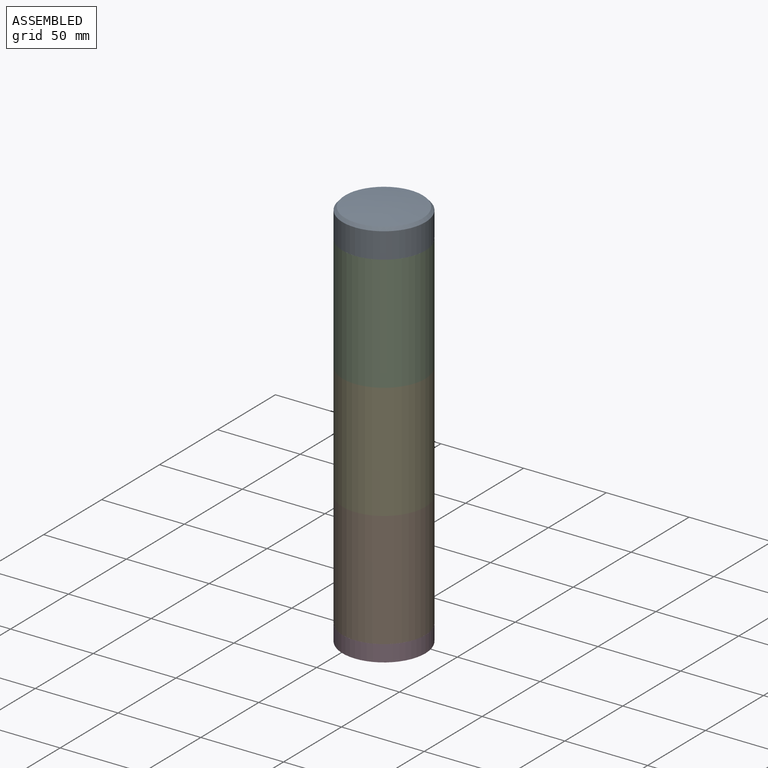
[diagram: assembled view]
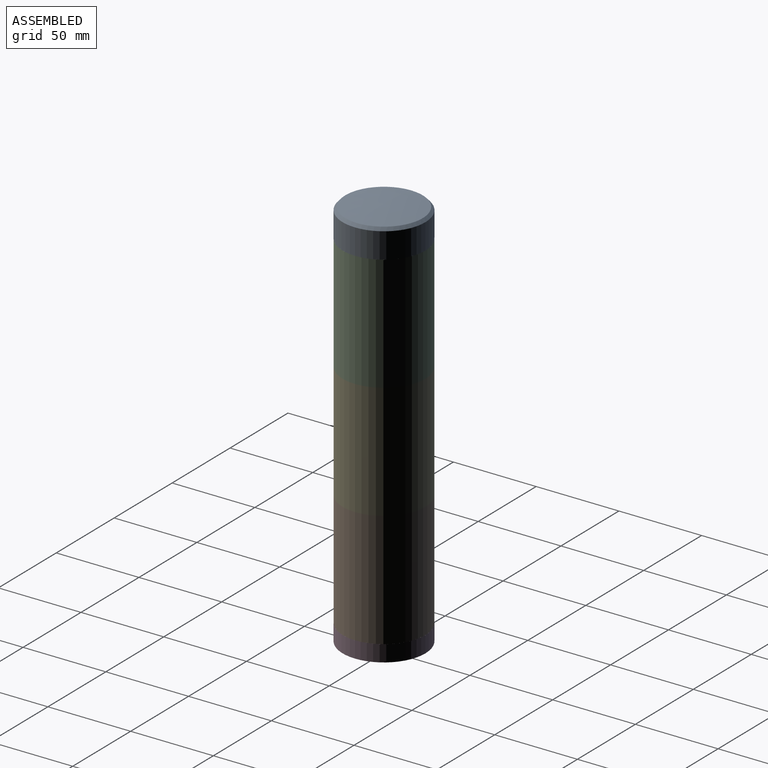
[diagram: assembled view, second angle]
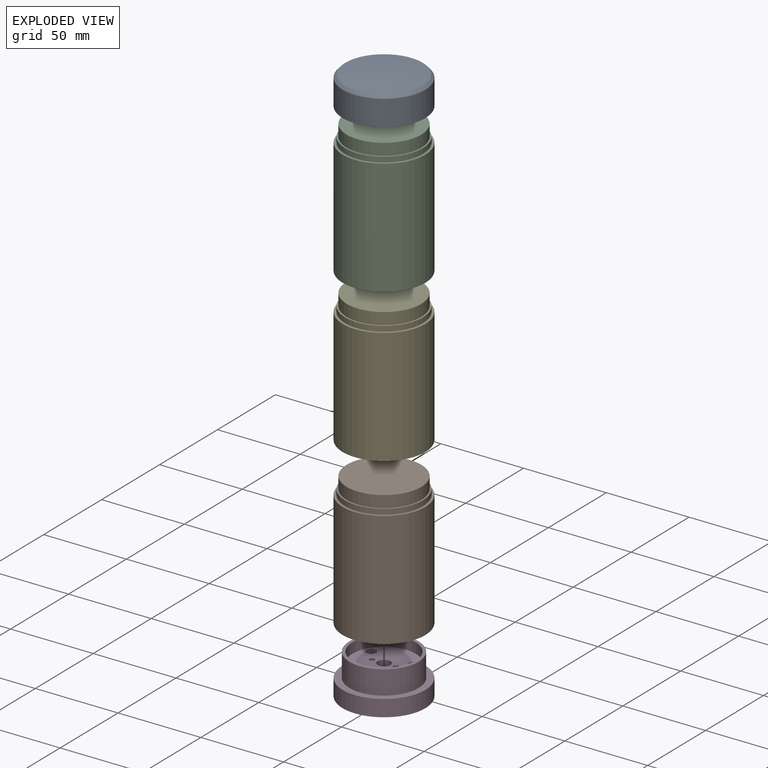
[diagram: exploded view]
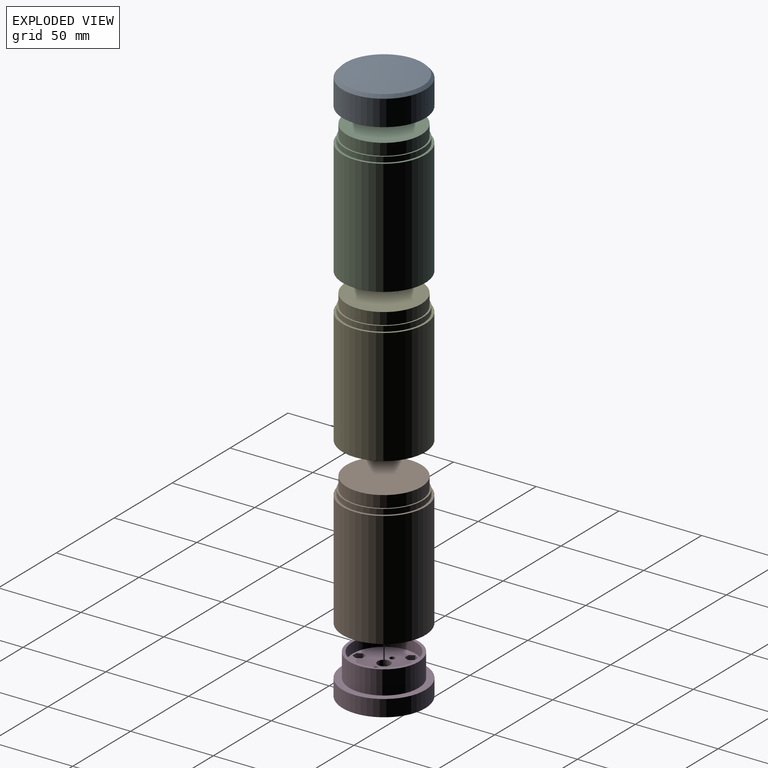
[diagram: exploded view, second angle]
ASSEMBLY  parts=5 mates=4
PART A: 9 faces, bbox 50x50x19 mm
  f0: plane 45.2x45.2mm, normal (0,0,-1), area 1604.6mm2, adj f1
  f1: cylinder r=22.6mm len=45.2mm, axis (0,0,-1), area 1008.2mm2, adj f0,f2
  f2: plane 47.1x47.1mm, normal (0,0,-1), area 137.7mm2, adj f1,f3
  f3: cylinder r=23.55mm len=47.1mm, axis (0,0,-1), area 473.5mm2, adj f2,f4
  f4: plane 50x50mm, normal (0,0,-1), area 221.2mm2, adj f3,f5
  f5: cylinder r=25mm len=50mm, axis (0,0,-1), area 2434.7mm2, adj f4,f7
  f6: sphere r=162.73mm, area 864.6mm2, adj f7,f8
  f7: cone r=0mm half-angle=41.8deg, axis (0,0,-1), area 364.9mm2, adj f5,f6,f8
  f8: sphere r=162.73mm, area 864.6mm2, adj f6,f7
PART B: 9 faces, bbox 50x50x80.3 mm
  f0: plane 45.2x45.2mm, normal (0,0,1), area 1604.6mm2, adj f1
  f1: cylinder r=22.6mm len=45.2mm, axis (0,0,-1), area 1008.2mm2, adj f0,f3
  f2: plane 41.8x41.8mm, normal (0,0,-1), area 1372.3mm2, adj f4
  f3: plane 47.1x47.1mm, normal (0,0,1), area 137.7mm2, adj f1,f5
  f4: cylinder r=20.9mm len=41.8mm, axis (0,0,-1), area 1877.9mm2, adj f2,f6
  f5: cylinder r=23.55mm len=47.1mm, axis (0,0,-1), area 473.5mm2, adj f3,f7
  f6: plane 50x50mm, normal (0,0,-1), area 591.2mm2, adj f4,f8
  f7: plane 50x50mm, normal (0,0,1), area 221.2mm2, adj f5,f8
  f8: cylinder r=25mm len=70mm, axis (0,0,-1), area 10995.6mm2, adj f6,f7
PART C: 9 faces, bbox 50x50x80.3 mm
  f0: plane 45.2x45.2mm, normal (0,0,1), area 1604.6mm2, adj f1
  f1: cylinder r=22.6mm len=45.2mm, axis (0,0,-1), area 1008.2mm2, adj f0,f3
  f2: plane 41.8x41.8mm, normal (0,0,-1), area 1372.3mm2, adj f4
  f3: plane 47.1x47.1mm, normal (0,0,1), area 137.7mm2, adj f1,f5
  f4: cylinder r=20.9mm len=41.8mm, axis (0,0,-1), area 1877.9mm2, adj f2,f6
  f5: cylinder r=23.55mm len=47.1mm, axis (0,0,-1), area 473.5mm2, adj f3,f7
  f6: plane 50x50mm, normal (0,0,-1), area 591.2mm2, adj f4,f8
  f7: plane 50x50mm, normal (0,0,1), area 221.2mm2, adj f5,f8
  f8: cylinder r=25mm len=70mm, axis (0,0,-1), area 10995.6mm2, adj f6,f7
PART D: 49 faces, bbox 50x50x24.8 mm
  f0: plane 50x50mm, normal (0,0,-1), area 337.5mm2, adj f4,f5
  f1: plane 3x3mm, normal (0,0,-1), area 7.1mm2, adj f6
  f2: plane 3x3mm, normal (0,0,-1), area 7.1mm2, adj f7
  f3: plane 3x3mm, normal (0,0,-1), area 7.1mm2, adj f8
  f4: cylinder r=25mm len=50mm, axis (0,0,-1), area 1570.8mm2, adj f0,f9
  f5: cylinder r=22.75mm len=45.5mm, axis (0,0,1), area 71.5mm2, adj f0,f12
  f6: cylinder r=1.5mm len=6.7mm, axis (0,0,-1), area 63.1mm2, adj f1,f12
  f7: cylinder r=1.5mm len=6.7mm, axis (0,0,-1), area 63.1mm2, adj f2,f12
  f8: cylinder r=1.5mm len=6.7mm, axis (0,0,-1), area 63.1mm2, adj f3,f12
  f9: plane 50x50mm, normal (0,0,1), area 591.2mm2, adj f4,f13,f14
  f10: plane 3x3mm, normal (0,0,1), area 7.1mm2, adj f15
  f11: plane 3x3mm, normal (0,0,1), area 7.1mm2, adj f16
  f12: plane 45.5x45.5mm, normal (0,0,-1), area 1224.6mm2, adj f5,f6,f7,f8,f17
  f13: cylinder r=20.9mm len=41.8mm, axis (0,0,-1), area 938.9mm2, adj f9,f14,f18
  f14: cylinder r=20.9mm len=41.8mm, axis (0,0,-1), area 938.9mm2, adj f9,f13,f18
  f15: cylinder r=1.5mm len=3mm, axis (0,0,1), area 11.3mm2, adj f10,f19
  f16: cylinder r=1.5mm len=3mm, axis (0,0,1), area 11.3mm2, adj f11,f20
  f17: cylinder r=11mm len=22mm, axis (0,0,-1), area 1071.3mm2, adj f12,f21
  f18: plane 41.8x41.8mm, normal (0,0,1), area 226.2mm2, adj f13,f14,f22,f23
  f19: plane 6.6x5.72mm, normal (0,0,1), area 21.2mm2, adj f15,f24,f25,f26,f27,f28,f29
  f20: plane 6.6x5.72mm, normal (0,0,1), area 21.2mm2, adj f16,f30,f31,f32,f33,f34,f35
  f21: plane 22x22mm, normal (0,0,-1), area 317.5mm2, adj f17,f36,f37,f38
  f22: cylinder r=19.1mm len=38.2mm, axis (0,0,1), area 378mm2, adj f18,f23,f39
  f23: cylinder r=19.1mm len=38.2mm, axis (0,0,1), area 378mm2, adj f18,f22,f39
  f24: plane 10x3.3mm, normal (0,-1,0), area 33mm2, adj f19,f25,f29,f39
  f25: plane 10x2.86mm, normal (-0.87,-0.5,0), area 33mm2, adj f19,f24,f26,f39
  f26: plane 10x2.86mm, normal (-0.87,0.5,0), area 33mm2, adj f19,f25,f27,f39
  f27: plane 10x3.3mm, normal (0,1,0), area 33mm2, adj f19,f26,f28,f39
  f28: plane 10x2.86mm, normal (0.87,0.5,0), area 33mm2, adj f19,f27,f29,f39
  f29: plane 10x2.86mm, normal (0.87,-0.5,0), area 33mm2, adj f19,f24,f28,f39
  f30: plane 10x2.86mm, normal (-0.87,0.5,0), area 33mm2, adj f20,f31,f35,f39
  f31: plane 10x3.3mm, normal (0,1,0), area 33mm2, adj f20,f30,f32,f39
  f32: plane 10x2.86mm, normal (0.87,0.5,0), area 33mm2, adj f20,f31,f33,f39
  f33: plane 10x2.86mm, normal (0.87,-0.5,0), area 33mm2, adj f20,f32,f34,f39
  f34: plane 10x3.3mm, normal (0,-1,0), area 33mm2, adj f20,f33,f35,f39
  f35: plane 10x2.86mm, normal (-0.87,-0.5,0), area 33mm2, adj f20,f30,f34,f39
  f36: cylinder r=3.85mm len=7.7mm, axis (0,0,-1), area 72.6mm2, adj f21,f39
  f37: cylinder r=1.6mm len=3.2mm, axis (0,0,-1), area 30.2mm2, adj f21,f39
  f38: cylinder r=1.6mm len=3.2mm, axis (0,0,-1), area 30.2mm2, adj f21,f39
  f39: plane 38.2x38.2mm, normal (0,0,1), area 998.6mm2, adj f22,f23,f24,f25,f26,f27,f28,f29
  f40: plane 10x2.86mm, normal (0.87,0.5,0), area 33mm2, adj f39,f41,f45,f47
  f41: plane 10x3.3mm, normal (0,1,0), area 33mm2, adj f39,f40,f42,f47
  f42: plane 10x2.86mm, normal (-0.87,0.5,0), area 33mm2, adj f39,f41,f43,f47
  f43: plane 10x2.86mm, normal (-0.87,-0.5,0), area 33mm2, adj f39,f42,f44,f47
  f44: plane 10x3.3mm, normal (0,-1,0), area 33mm2, adj f39,f43,f45,f47
  f45: plane 10x2.86mm, normal (0.87,-0.5,0), area 33mm2, adj f39,f40,f44,f47
  f46: plane 3x3mm, normal (0,0,1), area 7.1mm2, adj f48
  f47: plane 6.6x5.72mm, normal (0,0,1), area 21.2mm2, adj f40,f41,f42,f43,f44,f45,f48
  f48: cylinder r=1.5mm len=3mm, axis (0,0,1), area 11.3mm2, adj f46,f47
PART E: 9 faces, bbox 50x50x80.3 mm
  f0: plane 45.2x45.2mm, normal (0,0,1), area 1604.6mm2, adj f1
  f1: cylinder r=22.6mm len=45.2mm, axis (0,0,-1), area 1008.2mm2, adj f0,f3
  f2: plane 41.8x41.8mm, normal (0,0,-1), area 1372.3mm2, adj f4
  f3: plane 47.1x47.1mm, normal (0,0,1), area 137.7mm2, adj f1,f5
  f4: cylinder r=20.9mm len=41.8mm, axis (0,0,-1), area 1877.9mm2, adj f2,f6
  f5: cylinder r=23.55mm len=47.1mm, axis (0,0,-1), area 473.5mm2, adj f3,f7
  f6: plane 50x50mm, normal (0,0,-1), area 591.2mm2, adj f4,f8
  f7: plane 50x50mm, normal (0,0,1), area 221.2mm2, adj f5,f8
  f8: cylinder r=25mm len=70mm, axis (0,0,-1), area 10995.6mm2, adj f6,f7
PLACE A t=(-98.31,-65.69,111.8)mm
PLACE B t=(-352.31,-65.69,11.8)mm
PLACE C t=(-98.31,-65.69,151.8)mm
PLACE D t=(-98.31,-65.69,11.8)mm
PLACE E t=(-225.31,-65.69,81.8)mm
MATE fastened A.f1 <-> C.f1  axis (0,0,-1) through (-98.31,-65.69,522.8)mm
MATE fastened B.f1 <-> D.f4  axis (0,0,-1) through (-98.31,-65.69,312.8)mm
MATE fastened C.f1 <-> E.f1  axis (0,0,-1) through (-98.31,-65.69,452.8)mm
MATE fastened E.f1 <-> B.f1  axis (0,0,-1) through (-98.31,-65.69,382.8)mm
